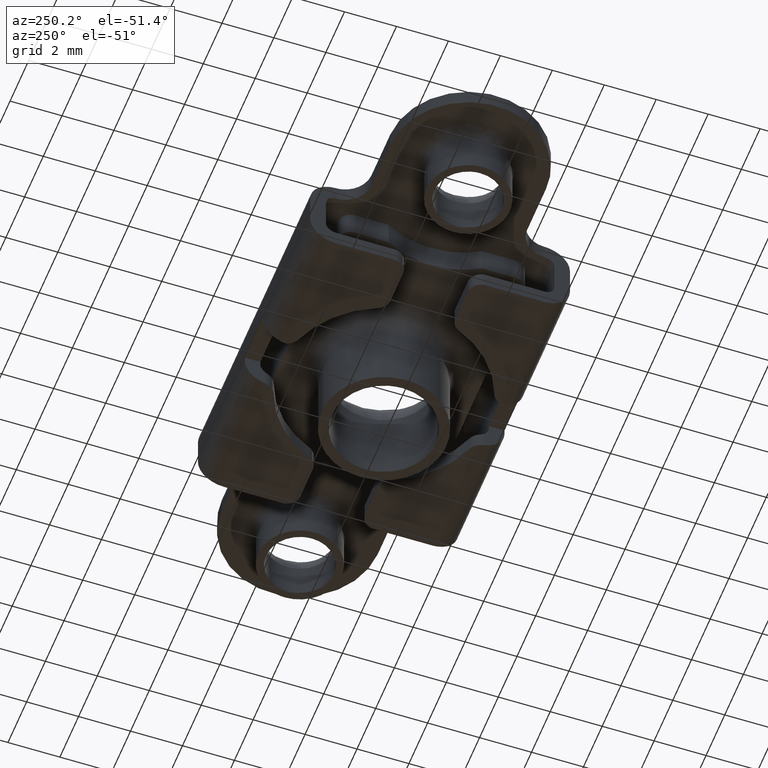
[diagram: clean part render]
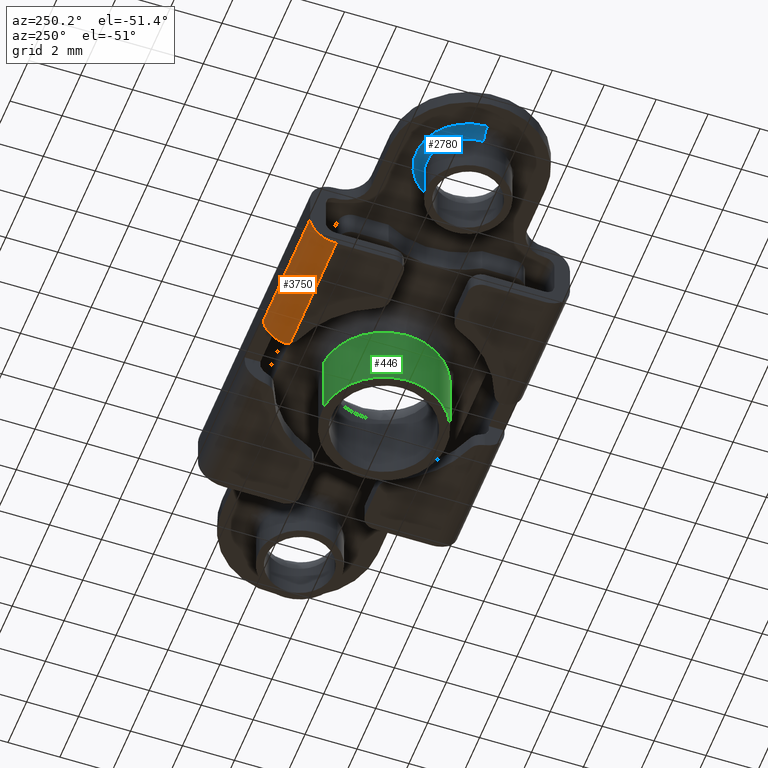
[diagram: same view with three faces highlighted in distinct colors, each labeled with its STEP entity id]
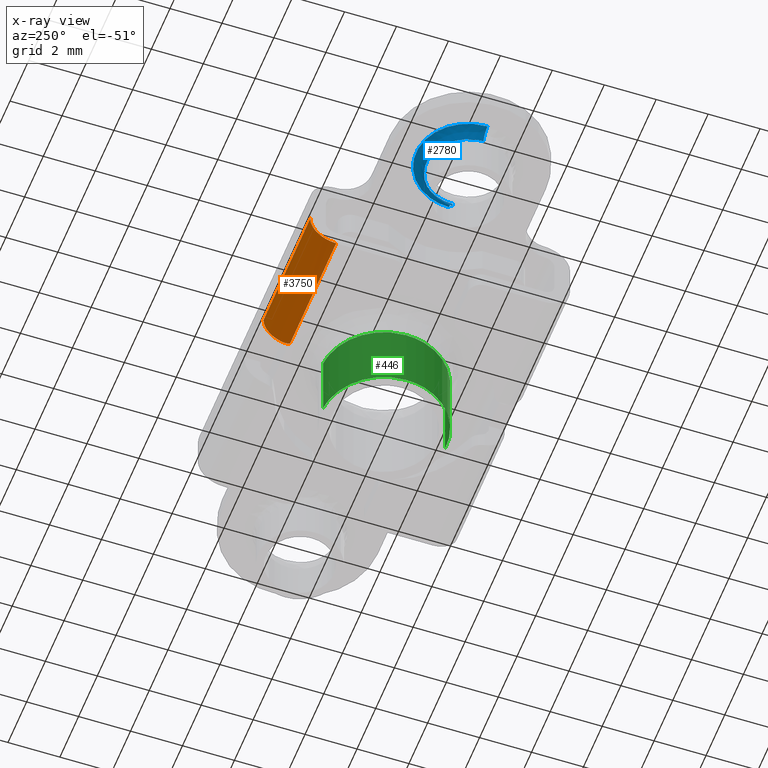
[diagram: x-ray of the same camera — body ghosted, the three highlighted faces saturated]
A machine part, auxiliary view with three faces highlighted in distinct colors.
The next image is the same camera in x-ray (body ghosted, the three faces saturated) — at least one of them is partly hidden behind the body in this view.
Their STEP definitions:

[orange] entity #3750 — the highlighted face is a freeform B-spline surface patch.
#3523=CARTESIAN_POINT('',(-6.0,4.999999999999490,-2.199999999984400));
#3524=VERTEX_POINT('',#3523);
#3559=CARTESIAN_POINT('',(-1.0,4.999999999999490,-2.199999999984400));
#3560=VERTEX_POINT('',#3559);
#3566=CARTESIAN_POINT('',(-6.0,4.999999999999490,-2.199999999984400));
#3567=CARTESIAN_POINT('',(-1.0,4.999999999999490,-2.199999999984400));
#3568=QUASI_UNIFORM_CURVE('',1,(#3566,#3567),.UNSPECIFIED.,.F.,.U.);
#3569=EDGE_CURVE('',#3524,#3560,#3568,.T.);
#3685=CARTESIAN_POINT('',(-6.125000000000001,4.999657324975047,-2.173823051676527));
#3686=CARTESIAN_POINT('',(-0.871874999999999,4.999657324975047,-2.173823051676527));
#3687=CARTESIAN_POINT('',(-6.125000000000001,5.028492260165753,-3.274984800539121));
#3688=CARTESIAN_POINT('',(-0.871874999999999,5.028492260165753,-3.274984800539121));
#3689=CARTESIAN_POINT('',(-6.125000000000002,3.929679924373506,-3.197524479365210));
#3690=CARTESIAN_POINT('',(-0.871874999999999,3.929679924373506,-3.197524479365210));
#3698=(BOUNDED_SURFACE()B_SPLINE_SURFACE(1,2,((#3685,#3687,#3689),(#3686,#3688,#3690)),.UNSPECIFIED.,.F.,.F.,.U.)B_SPLINE_SURFACE_WITH_KNOTS((2,2),(3,3),(0.0,5.253125000000003),(0.0,0.994518632334191),.UNSPECIFIED.)GEOMETRIC_REPRESENTATION_ITEM()RATIONAL_B_SPLINE_SURFACE(((1.0,0.670944223154768,0.996392648609106),(1.0,0.670944223154768,0.996392648609106)))REPRESENTATION_ITEM('')SURFACE());
#3699=CARTESIAN_POINT('',(-1.0,4.242640687119800,-3.170116228564140));
#3700=VERTEX_POINT('',#3699);
#3701=CARTESIAN_POINT('',(-1.0,4.242640687119800,-3.170116228564143));
#3702=CARTESIAN_POINT('',(-1.0,4.999999999999490,-2.980689252022240));
#3703=CARTESIAN_POINT('',(-1.0,4.999999999999490,-2.199999999984400));
#3711=(BOUNDED_CURVE()B_SPLINE_CURVE(2,(#3701,#3702,#3703),.UNSPECIFIED.,.F.,.U.)CURVE()GEOMETRIC_REPRESENTATION_ITEM()QUASI_UNIFORM_CURVE()RATIONAL_B_SPLINE_CURVE((1.0,0.788238760503539,1.0))REPRESENTATION_ITEM(''));
#3712=EDGE_CURVE('',#3700,#3560,#3711,.T.);
#3713=ORIENTED_EDGE('',*,*,#3712,.F.);
#3714=CARTESIAN_POINT('',(-1.062820978369520,3.999999999999490,-3.199999999984440));
#3715=VERTEX_POINT('',#3714);
#3716=CARTESIAN_POINT('',(-1.0,4.242640687119800,-3.170116228564140));
#3717=CARTESIAN_POINT('',(-1.0,4.200989413676210,-3.180533839681300));
#3718=CARTESIAN_POINT('',(-1.005127666796571,4.159627792824371,-3.188039798585404));
#3719=CARTESIAN_POINT('',(-1.020864978454845,4.098151681218649,-3.195385436104133));
#3720=CARTESIAN_POINT('',(-1.027508420419678,4.077697441927655,-3.197174472484452));
#3721=CARTESIAN_POINT('',(-1.043264742675421,4.038074141405516,-3.199471950988595));
#3722=CARTESIAN_POINT('',(-1.052401211301997,4.018773865282594,-3.199999999984400));
#3723=CARTESIAN_POINT('',(-1.062820978369512,3.999999999999500,-3.199999999984400));
#3724=B_SPLINE_CURVE_WITH_KNOTS('',3,(#3716,#3717,#3718,#3719,#3720,#3721,#3722,#3723),.UNSPECIFIED.,.F.,.U.,(4,2,2,4),(0.0,0.500000000000000,0.750000000000000,1.0),.UNSPECIFIED.);
#3725=EDGE_CURVE('',#3700,#3715,#3724,.T.);
#3726=ORIENTED_EDGE('',*,*,#3725,.T.);
#3727=CARTESIAN_POINT('',(-6.0,3.999999999999490,-3.199999999984400));
#3728=VERTEX_POINT('',#3727);
#3729=CARTESIAN_POINT('',(-6.0,3.999999999999490,-3.199999999984400));
#3730=CARTESIAN_POINT('',(-1.062820978369520,3.999999999999490,-3.199999999984440));
#3731=QUASI_UNIFORM_CURVE('',1,(#3729,#3730),.UNSPECIFIED.,.F.,.U.);
#3732=EDGE_CURVE('',#3728,#3715,#3731,.T.);
#3733=ORIENTED_EDGE('',*,*,#3732,.F.);
#3734=CARTESIAN_POINT('',(-6.0,3.999999999999490,-3.199999999984400));
#3735=CARTESIAN_POINT('',(-6.0,4.999999999999490,-3.199999999984399));
#3736=CARTESIAN_POINT('',(-6.0,4.999999999999490,-2.199999999984400));
#3744=(BOUNDED_CURVE()B_SPLINE_CURVE(2,(#3734,#3735,#3736),.UNSPECIFIED.,.F.,.U.)CURVE()GEOMETRIC_REPRESENTATION_ITEM()QUASI_UNIFORM_CURVE()RATIONAL_B_SPLINE_CURVE((1.0,0.707106781186548,1.0))REPRESENTATION_ITEM(''));
#3745=EDGE_CURVE('',#3728,#3524,#3744,.T.);
#3746=ORIENTED_EDGE('',*,*,#3745,.T.);
#3747=ORIENTED_EDGE('',*,*,#3569,.T.);
#3748=EDGE_LOOP('',(#3713,#3726,#3733,#3746,#3747));
#3749=FACE_OUTER_BOUND('',#3748,.T.);
#3750=ADVANCED_FACE('',(#3749),#3698,.T.);

[blue] entity #2780 — the highlighted face is a freeform B-spline surface patch.
#1857=CARTESIAN_POINT('',(-9.125534553191987,1.595067733970845,-0.999999999868488));
#1858=VERTEX_POINT('',#1857);
#1859=CARTESIAN_POINT('',(-7.400126329273931,0.020105663816163,-0.999999999716510));
#1860=VERTEX_POINT('',#1859);
#1861=CARTESIAN_POINT('',(-9.125534553191985,1.595067733970846,-0.999999999868488));
#1862=CARTESIAN_POINT('',(-9.062864171226051,1.600000000000000,-0.999999999862933));
#1863=CARTESIAN_POINT('',(-8.999999999999998,1.600000000000000,-0.999999999857364));
#1864=CARTESIAN_POINT('',(-7.419980912151065,1.600000000000000,-0.999999999717390));
#1865=CARTESIAN_POINT('',(-7.400126329273931,0.020105663816163,-0.999999999716510));
#1873=(BOUNDED_CURVE()B_SPLINE_CURVE(2,(#1861,#1862,#1863,#1864,#1865),.UNSPECIFIED.,.F.,.U.)B_SPLINE_CURVE_WITH_KNOTS((3,2,3),(0.236331300629818,0.250000000000000,0.497784295921420),.UNSPECIFIED.)CURVE()GEOMETRIC_REPRESENTATION_ITEM()RATIONAL_B_SPLINE_CURVE((0.969723356165662,0.983986122577896,1.0,0.709702639984601,0.994854295643304))REPRESENTATION_ITEM(''));
#1874=EDGE_CURVE('',#1858,#1860,#1873,.T.);
#1939=CARTESIAN_POINT('',(-10.599999999999991,0.0,-1.0));
#1940=VERTEX_POINT('',#1939);
#1941=CARTESIAN_POINT('',(-10.599999999999991,0.0,-1.0));
#1942=CARTESIAN_POINT('',(-10.599999999999994,1.479024786627613,-0.999999999999177));
#1943=CARTESIAN_POINT('',(-9.125534553191987,1.595067733970846,-0.999999999868488));
#1951=(BOUNDED_CURVE()B_SPLINE_CURVE(2,(#1941,#1942,#1943),.UNSPECIFIED.,.F.,.U.)B_SPLINE_CURVE_WITH_KNOTS((3,3),(0.0,0.236331300629818),.UNSPECIFIED.)CURVE()GEOMETRIC_REPRESENTATION_ITEM()RATIONAL_B_SPLINE_CURVE((1.0,0.723120658608651,0.969723356165662))REPRESENTATION_ITEM(''));
#1952=EDGE_CURVE('',#1940,#1858,#1951,.T.);
#1958=CARTESIAN_POINT('',(-10.599873670726071,-0.020105663816163,-0.999999999716510));
#1959=VERTEX_POINT('',#1958);
#1975=CARTESIAN_POINT('',(-10.599873670726073,-0.020105663816163,-0.999999999716510));
#1976=CARTESIAN_POINT('',(-10.599999999999993,-0.010053228788423,-0.999999999858255));
#1977=CARTESIAN_POINT('',(-10.599999999999991,0.0,-1.0));
#1985=(BOUNDED_CURVE()B_SPLINE_CURVE(2,(#1975,#1976,#1977),.UNSPECIFIED.,.F.,.U.)B_SPLINE_CURVE_WITH_KNOTS((3,3),(0.997784295921420,1.0),.UNSPECIFIED.)CURVE()GEOMETRIC_REPRESENTATION_ITEM()RATIONAL_B_SPLINE_CURVE((0.994854295643304,0.997404141201947,1.0))REPRESENTATION_ITEM(''));
#1986=EDGE_CURVE('',#1959,#1940,#1985,.T.);
#2636=CARTESIAN_POINT('',(-7.000158016111243,0.025132078436456,-0.600000000000078));
#2637=VERTEX_POINT('',#2636);
#2638=CARTESIAN_POINT('',(-7.400126329273932,0.020105663816163,-0.999999999716510));
#2639=CARTESIAN_POINT('',(-7.400126328990345,0.020105663809949,-0.600000104527327));
#2640=CARTESIAN_POINT('',(-7.000158016111243,0.025132078436456,-0.600000000000078));
#2648=(BOUNDED_CURVE()B_SPLINE_CURVE(2,(#2638,#2639,#2640),.UNSPECIFIED.,.F.,.U.)B_SPLINE_CURVE_WITH_KNOTS((3,3),(-1.725134642555021,-0.274865624698751),.UNSPECIFIED.)CURVE()GEOMETRIC_REPRESENTATION_ITEM()RATIONAL_B_SPLINE_CURVE((0.883342149393743,0.624617272064396,0.883342054038763))REPRESENTATION_ITEM(''));
#2649=EDGE_CURVE('',#1860,#2637,#2648,.T.);
#2666=CARTESIAN_POINT('',(-10.999841983888761,-0.025132078436456,-0.600000000000078));
#2667=VERTEX_POINT('',#2666);
#2692=CARTESIAN_POINT('',(-10.599873670726067,-0.020105663816163,-0.999999999716510));
#2693=CARTESIAN_POINT('',(-10.599873671009659,-0.020105663809949,-0.600000104527328));
#2694=CARTESIAN_POINT('',(-10.999841983888757,-0.025132078436456,-0.600000000000078));
#2702=(BOUNDED_CURVE()B_SPLINE_CURVE(2,(#2692,#2693,#2694),.UNSPECIFIED.,.F.,.U.)B_SPLINE_CURVE_WITH_KNOTS((3,3),(-1.725134642555021,-0.274865624698753),.UNSPECIFIED.)CURVE()GEOMETRIC_REPRESENTATION_ITEM()RATIONAL_B_SPLINE_CURVE((0.883342149393743,0.624617272064397,0.883342054038762))REPRESENTATION_ITEM(''));
#2703=EDGE_CURVE('',#1959,#2667,#2702,.T.);
#2710=CARTESIAN_POINT('',(-10.600841848079902,-0.020117830929271,-1.027814843645295));
#2711=CARTESIAN_POINT('',(-10.620959679009172,1.580724017150630,-1.027814843645295));
#2712=CARTESIAN_POINT('',(-9.020117830929273,1.600841848079900,-1.027814843645295));
#2713=CARTESIAN_POINT('',(-7.419275982849370,1.620959679009170,-1.027814843645295));
#2714=CARTESIAN_POINT('',(-7.399158151920100,0.020117830929271,-1.027814843645295));
#2715=CARTESIAN_POINT('',(-10.568861262074316,-0.019715929877614,-0.568985130392953));
#2716=CARTESIAN_POINT('',(-10.588577191951927,1.549145332196701,-0.568985130392953));
#2717=CARTESIAN_POINT('',(-9.019715929877613,1.568861262074315,-0.568985130392953));
#2718=CARTESIAN_POINT('',(-7.450854667803297,1.588577191951929,-0.568985130392953));
#2719=CARTESIAN_POINT('',(-7.431138737925685,0.019715929877614,-0.568985130392953));
#2720=CARTESIAN_POINT('',(-11.027654747159634,-0.025481602342678,-0.600968254587345));
#2721=CARTESIAN_POINT('',(-11.053136349502314,2.002173144816957,-0.600968254587345));
#2722=CARTESIAN_POINT('',(-9.025481602342678,2.027654747159636,-0.600968254587345));
#2723=CARTESIAN_POINT('',(-6.997826855183045,2.053136349502314,-0.600968254587345));
#2724=CARTESIAN_POINT('',(-6.972345252840364,0.025481602342679,-0.600968254587345));
#2732=(BOUNDED_SURFACE()B_SPLINE_SURFACE(2,2,((#2710,#2715,#2720),(#2711,#2716,#2721),(#2712,#2717,#2722),(#2713,#2718,#2723),(#2714,#2719,#2724)),.UNSPECIFIED.,.F.,.F.,.U.)B_SPLINE_SURFACE_WITH_KNOTS((3,2,3),(3,3),(0.0,3.359793659518241,6.719587319036482),(0.0,0.728949578264927),.UNSPECIFIED.)GEOMETRIC_REPRESENTATION_ITEM()RATIONAL_B_SPLINE_SURFACE(((0.910479795090997,0.597479572841838,0.910479806786608),(0.643806437242182,0.422481857576905,0.643806445512228),(0.910479795090997,0.597479572841838,0.910479806786608),(0.643806437242182,0.422481857576905,0.643806445512228),(0.910479795090997,0.597479572841838,0.910479806786608)))REPRESENTATION_ITEM('')SURFACE());
#2733=ORIENTED_EDGE('',*,*,#1952,.F.);
#2734=ORIENTED_EDGE('',*,*,#1986,.F.);
#2735=ORIENTED_EDGE('',*,*,#2703,.T.);
#2736=CARTESIAN_POINT('',(-10.999999999999940,0.0,-0.600000000000051));
#2737=VERTEX_POINT('',#2736);
#2738=CARTESIAN_POINT('',(-10.999841983888759,-0.025132078436456,-0.600000000000078));
#2739=CARTESIAN_POINT('',(-10.999999947740431,-0.012566535318654,-0.600000000000065));
#2740=CARTESIAN_POINT('',(-10.999999999999940,0.0,-0.600000000000051));
#2748=(BOUNDED_CURVE()B_SPLINE_CURVE(2,(#2738,#2739,#2740),.UNSPECIFIED.,.F.,.U.)B_SPLINE_CURVE_WITH_KNOTS((3,3),(0.997784295923202,1.0),.UNSPECIFIED.)CURVE()GEOMETRIC_REPRESENTATION_ITEM()RATIONAL_B_SPLINE_CURVE((0.994854295647404,0.997404141204034,1.0))REPRESENTATION_ITEM(''));
#2749=EDGE_CURVE('',#2667,#2737,#2748,.T.);
#2750=ORIENTED_EDGE('',*,*,#2749,.T.);
#2751=CARTESIAN_POINT('',(-10.999999999999940,0.0,-0.600000000000051));
#2752=CARTESIAN_POINT('',(-11.000010634778191,0.114078053490034,-0.600000000000052));
#2753=CARTESIAN_POINT('',(-10.981821577376451,0.325934640875135,-0.600000000000050));
#2754=CARTESIAN_POINT('',(-10.906682482065840,0.627182692530784,-0.600000000000054));
#2755=CARTESIAN_POINT('',(-10.788320435754031,0.914213882631119,-0.600000000000047));
#2756=CARTESIAN_POINT('',(-10.621601712179411,1.186131602925150,-0.600000000000062));
#2757=CARTESIAN_POINT('',(-10.434015683009040,1.402148832176954,-0.600000000000035));
#2758=CARTESIAN_POINT('',(-10.190295232624541,1.619164938884397,-0.600000000000089));
#2759=CARTESIAN_POINT('',(-9.912699264726015,1.794136217785406,-0.600000000000029));
#2760=CARTESIAN_POINT('',(-9.515901920737926,1.946602416664109,-0.600000000000081));
#2761=CARTESIAN_POINT('',(-9.135322765117987,2.010053685534260,-0.600000000000046));
#2762=CARTESIAN_POINT('',(-8.775801247169772,1.994685714131518,-0.600000000000070));
#2763=CARTESIAN_POINT('',(-8.487164228097454,1.939389330830850,-0.600000000000067));
#2764=CARTESIAN_POINT('',(-8.185057024015956,1.838045376075653,-0.600000000000071));
#2765=CARTESIAN_POINT('',(-7.919180895344416,1.692463504151229,-0.600000000000072));
#2766=CARTESIAN_POINT('',(-7.673091871038618,1.503910377162610,-0.600000000000073));
#2767=CARTESIAN_POINT('',(-7.499117524815604,1.331082313212529,-0.600000000000077));
#2768=CARTESIAN_POINT('',(-7.295465022943192,1.065591704486772,-0.600000000000067));
#2769=CARTESIAN_POINT('',(-7.131591589140744,0.753215299421062,-0.600000000000107));
#2770=CARTESIAN_POINT('',(-7.024829137592906,0.375226632297339,-0.600000000000023));
#2771=CARTESIAN_POINT('',(-7.001582980301260,0.139199756165530,-0.600000000000180));
#2772=CARTESIAN_POINT('',(-7.000158016111243,0.025132078436456,-0.600000000000078));
#2773=B_SPLINE_CURVE_WITH_KNOTS('',3,(#2751,#2752,#2753,#2754,#2755,#2756,#2757,#2758,#2759,#2760,#2761,#2762,#2763,#2764,#2765,#2766,#2767,#2768,#2769,#2770,#2771,#2772),.UNSPECIFIED.,.F.,.U.,(4,1,1,1,1,1,1,1,1,1,1,1,1,1,1,1,1,1,1,4),(0.000000015848984,0.342233793270927,0.635586495249833,0.928935227182775,1.271171339165574,1.588969607609412,1.784534934679980,2.249003329934205,2.566806005192268,3.055724392537983,3.397938815843023,3.642395468952582,3.935747673411646,4.351324769727558,4.546894346574888,4.864690202708352,5.084703950682442,5.549178147685485,5.915859974446369,6.258091437032793),.UNSPECIFIED.);
#2774=EDGE_CURVE('',#2737,#2637,#2773,.T.);
#2775=ORIENTED_EDGE('',*,*,#2774,.T.);
#2776=ORIENTED_EDGE('',*,*,#2649,.F.);
#2777=ORIENTED_EDGE('',*,*,#1874,.F.);
#2778=EDGE_LOOP('',(#2733,#2734,#2735,#2750,#2775,#2776,#2777));
#2779=FACE_OUTER_BOUND('',#2778,.T.);
#2780=ADVANCED_FACE('',(#2779),#2732,.F.);

[green] entity #446 — the highlighted face is a freeform B-spline surface patch.
#10=CARTESIAN_POINT('',(-2.400000000007464,5.883294E-012,-5.199999999984399));
#11=VERTEX_POINT('',#10);
#12=CARTESIAN_POINT('',(-0.146516179513301,2.395523535515243,-5.199999999984399));
#13=VERTEX_POINT('',#12);
#14=CARTESIAN_POINT('',(-2.400000000007464,5.883294E-012,-5.199999999984399));
#15=CARTESIAN_POINT('',(-2.400000000007481,2.257694858367941,-5.199999999984399));
#16=CARTESIAN_POINT('',(-0.146516179513301,2.395523535515243,-5.199999999984399));
#24=(BOUNDED_CURVE()B_SPLINE_CURVE(2,(#14,#15,#16),.UNSPECIFIED.,.F.,.U.)B_SPLINE_CURVE_WITH_KNOTS((3,3),(0.0,0.239332984957767),.UNSPECIFIED.)CURVE()GEOMETRIC_REPRESENTATION_ITEM()RATIONAL_B_SPLINE_CURVE((1.0,0.719603966669952,0.976072090357488))REPRESENTATION_ITEM(''));
#25=EDGE_CURVE('',#11,#13,#24,.T.);
#44=CARTESIAN_POINT('',(0.146516179513273,-2.395523535503476,-5.199999999984399));
#45=VERTEX_POINT('',#44);
#59=CARTESIAN_POINT('',(0.146516179513273,-2.395523535503476,-5.199999999984399));
#60=CARTESIAN_POINT('',(0.073326473789297,-2.400000000002115,-5.199999999984399));
#61=CARTESIAN_POINT('',(1.915877E-014,-2.400000000002106,-5.199999999984399));
#62=CARTESIAN_POINT('',(-2.400000000007448,-2.400000000001828,-5.199999999984399));
#63=CARTESIAN_POINT('',(-2.400000000007464,5.883294E-012,-5.199999999984399));
#71=(BOUNDED_CURVE()B_SPLINE_CURVE(2,(#59,#60,#61,#62,#63),.UNSPECIFIED.,.F.,.U.)B_SPLINE_CURVE_WITH_KNOTS((3,2,3),(0.739332984957767,0.750000000000000,1.0),.UNSPECIFIED.)CURVE()GEOMETRIC_REPRESENTATION_ITEM()RATIONAL_B_SPLINE_CURVE((0.976072090357488,0.987502814516596,1.0,0.707106781186548,1.0))REPRESENTATION_ITEM(''));
#72=EDGE_CURVE('',#45,#11,#71,.T.);
#313=CARTESIAN_POINT('',(-0.146516388563028,2.395523522730405,-2.599999999978278));
#314=VERTEX_POINT('',#313);
#347=CARTESIAN_POINT('',(0.146516388562999,-2.395523522718638,-2.599999999978278));
#348=VERTEX_POINT('',#347);
#362=CARTESIAN_POINT('',(0.146516388562999,-2.395523522718638,-2.599999999978278));
#363=CARTESIAN_POINT('',(0.146516179513273,-2.395523535503476,-5.199999999984399));
#364=QUASI_UNIFORM_CURVE('',1,(#362,#363),.UNSPECIFIED.,.F.,.U.);
#365=EDGE_CURVE('',#348,#45,#364,.T.);
#369=CARTESIAN_POINT('',(-0.146516388563028,2.395523522730405,-2.599999999978278));
#370=CARTESIAN_POINT('',(-0.146516179513301,2.395523535515243,-5.199999999984399));
#371=QUASI_UNIFORM_CURVE('',1,(#369,#370),.UNSPECIFIED.,.F.,.U.);
#372=EDGE_CURVE('',#314,#13,#371,.T.);
#377=CARTESIAN_POINT('',(0.146516494884168,-2.395523516215186,-2.534999999973389));
#378=CARTESIAN_POINT('',(-2.249007021336900,-2.542040011099368,-2.534999999973389));
#379=CARTESIAN_POINT('',(-2.395523516221083,-0.146516494878299,-2.534999999973389));
#380=CARTESIAN_POINT('',(-2.542040011105266,2.249007021342770,-2.534999999973389));
#381=CARTESIAN_POINT('',(-0.146516494884196,2.395523516226952,-2.534999999973389));
#382=CARTESIAN_POINT('',(0.146516494884168,-2.395523516215186,-5.266624999984676));
#383=CARTESIAN_POINT('',(-2.249007021336900,-2.542040011099368,-5.266624999984676));
#384=CARTESIAN_POINT('',(-2.395523516221083,-0.146516494878299,-5.266624999984676));
#385=CARTESIAN_POINT('',(-2.542040011105266,2.249007021342770,-5.266624999984676));
#386=CARTESIAN_POINT('',(-0.146516494884196,2.395523516226952,-5.266624999984676));
#394=(BOUNDED_SURFACE()B_SPLINE_SURFACE(2,1,((#377,#382),(#378,#383),(#379,#384),(#380,#385),(#381,#386)),.UNSPECIFIED.,.F.,.F.,.U.)B_SPLINE_SURFACE_WITH_KNOTS((3,2,3),(2,2),(0.0,3.976450198795968,7.952900397591936),(0.0,2.731625000011288),.UNSPECIFIED.)GEOMETRIC_REPRESENTATION_ITEM()RATIONAL_B_SPLINE_SURFACE(((1.0,1.0),(0.707106781186548,0.707106781186548),(1.0,1.0),(0.707106781186548,0.707106781186548),(1.0,1.0)))REPRESENTATION_ITEM('')SURFACE());
#395=CARTESIAN_POINT('',(-2.399810505945269,0.030158507953047,-2.599999999973657));
#396=VERTEX_POINT('',#395);
#397=CARTESIAN_POINT('',(-2.399810505945270,0.030158507953047,-2.599999999973658));
#398=CARTESIAN_POINT('',(-2.371795297155690,2.259419733250210,-2.599999999973685));
#399=CARTESIAN_POINT('',(-0.146516388563028,2.395523522730406,-2.599999999978278));
#407=(BOUNDED_CURVE()B_SPLINE_CURVE(2,(#397,#398,#399),.UNSPECIFIED.,.F.,.U.)B_SPLINE_CURVE_WITH_KNOTS((3,3),(0.002215704974312,0.239332969900162),.UNSPECIFIED.)CURVE()GEOMETRIC_REPRESENTATION_ITEM()RATIONAL_B_SPLINE_CURVE((0.994854293581677,0.721978323237479,0.976072058086168))REPRESENTATION_ITEM(''));
#408=EDGE_CURVE('',#396,#314,#407,.T.);
#409=ORIENTED_EDGE('',*,*,#408,.T.);
#410=ORIENTED_EDGE('',*,*,#372,.T.);
#411=ORIENTED_EDGE('',*,*,#25,.F.);
#412=ORIENTED_EDGE('',*,*,#72,.F.);
#413=ORIENTED_EDGE('',*,*,#365,.F.);
#414=CARTESIAN_POINT('',(-2.400000000009769,5.883315E-012,-2.599999999983565));
#415=VERTEX_POINT('',#414);
#416=CARTESIAN_POINT('',(0.146516388562999,-2.395523522718638,-2.599999999978278));
#417=CARTESIAN_POINT('',(0.073326578607204,-2.400000000003303,-2.599999999978429));
#418=CARTESIAN_POINT('',(-4.842337E-014,-2.400000000003312,-2.599999999978580));
#419=CARTESIAN_POINT('',(-2.400000000009785,-2.400000000003599,-2.599999999983534));
#420=CARTESIAN_POINT('',(-2.400000000009769,5.883315E-012,-2.599999999983565));
#428=(BOUNDED_CURVE()B_SPLINE_CURVE(2,(#416,#417,#418,#419,#420),.UNSPECIFIED.,.F.,.U.)B_SPLINE_CURVE_WITH_KNOTS((3,2,3),(0.739332969900162,0.750000000000000,1.0),.UNSPECIFIED.)CURVE()GEOMETRIC_REPRESENTATION_ITEM()RATIONAL_B_SPLINE_CURVE((0.976072058086169,0.987502796875514,1.0,0.707106781186547,1.0))REPRESENTATION_ITEM(''));
#429=EDGE_CURVE('',#348,#415,#428,.T.);
#430=ORIENTED_EDGE('',*,*,#429,.T.);
#431=CARTESIAN_POINT('',(-2.400000000009769,5.883315E-012,-2.599999999983565));
#432=CARTESIAN_POINT('',(-2.400000000009768,0.015079849300702,-2.599999999978611));
#433=CARTESIAN_POINT('',(-2.399810505945270,0.030158507953047,-2.599999999973658));
#441=(BOUNDED_CURVE()B_SPLINE_CURVE(2,(#431,#432,#433),.UNSPECIFIED.,.F.,.U.)B_SPLINE_CURVE_WITH_KNOTS((3,3),(0.0,0.002215704974312),.UNSPECIFIED.)CURVE()GEOMETRIC_REPRESENTATION_ITEM()RATIONAL_B_SPLINE_CURVE((1.0,0.997404140152532,0.994854293581677))REPRESENTATION_ITEM(''));
#442=EDGE_CURVE('',#415,#396,#441,.T.);
#443=ORIENTED_EDGE('',*,*,#442,.T.);
#444=EDGE_LOOP('',(#409,#410,#411,#412,#413,#430,#443));
#445=FACE_OUTER_BOUND('',#444,.T.);
#446=ADVANCED_FACE('',(#445),#394,.T.);